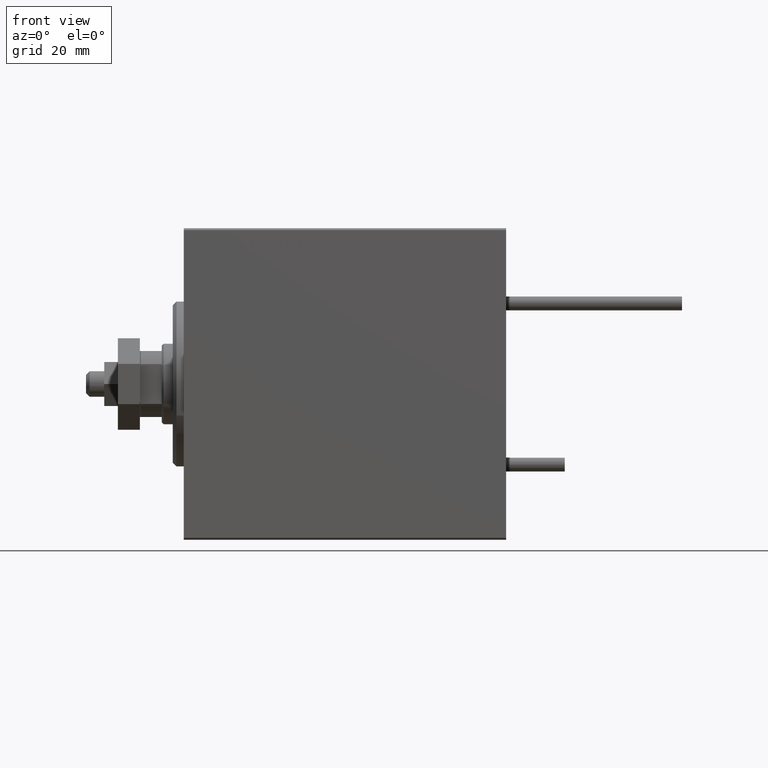
[diagram: clean part render]
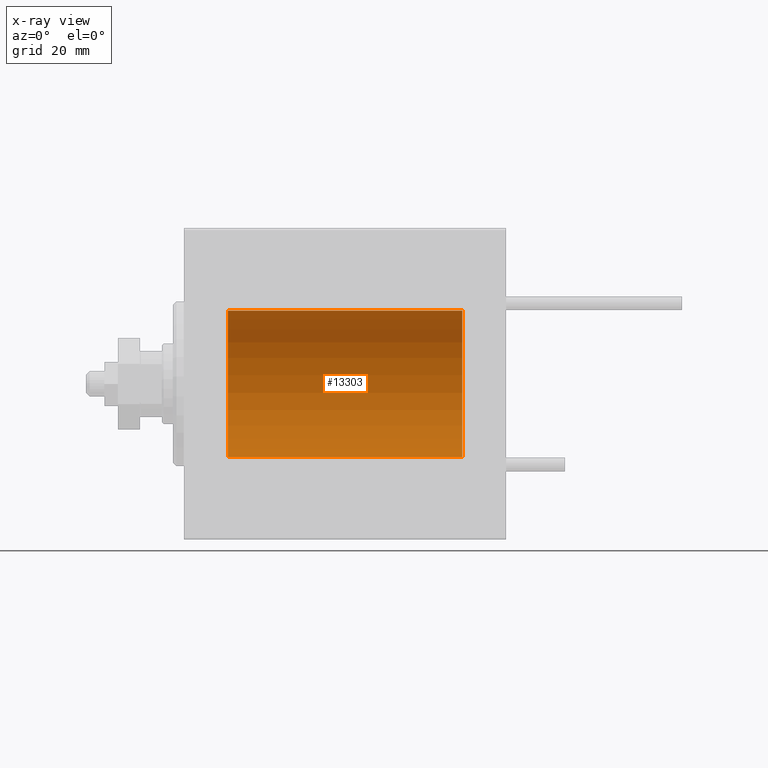
[diagram: x-ray — body ghosted, one internal face saturated and labeled with its STEP entity id]
A machine part, front view, then the same camera in x-ray: the body is ghosted and one INTERNAL B-rep face — a face not visible from any outside direction — is saturated and labeled: STEP entity #13303.
In plain terms, the highlighted cylindrical surface (partial cylindrical patch) has radius 20 mm, axis along (-1, -0, -0).
Its self-contained STEP definition (entity closure, byte-faithful):
#2117 = VECTOR ( 'NONE', #40702, 1000.000000000000000 ) ;
#3223 = CARTESIAN_POINT ( 'NONE',  ( 76.00000000000000000, 0.000000000000000000, 0.000000000000000000 ) ) ;
#3233 = LINE ( 'NONE', #25783, #2117 ) ;
#3499 = CYLINDRICAL_SURFACE ( 'NONE', #43440, 20.00000000000000000 ) ;
#3665 = DIRECTION ( 'NONE',  ( -1.000000000000000000, -0.000000000000000000, -0.000000000000000000 ) ) ;
#6250 = CARTESIAN_POINT ( 'NONE',  ( 11.99999999999999645, 0.000000000000000000, 0.000000000000000000 ) ) ;
#6258 = DIRECTION ( 'NONE',  ( 0.000000000000000000, 0.000000000000000000, 1.000000000000000000 ) ) ;
#7087 = ORIENTED_EDGE ( 'NONE', *, *, #37939, .F. ) ;
#7285 = VERTEX_POINT ( 'NONE', #10547 ) ;
#7305 = FACE_OUTER_BOUND ( 'NONE', #48223, .T. ) ;
#8377 = ORIENTED_EDGE ( 'NONE', *, *, #33532, .F. ) ;
#10068 = ORIENTED_EDGE ( 'NONE', *, *, #31655, .T. ) ;
#10290 = AXIS2_PLACEMENT_3D ( 'NONE', #3223, #41963, #6258 ) ;
#10547 = CARTESIAN_POINT ( 'NONE',  ( 11.99999999999999645, 0.000000000000000000, 20.00000000000000000 ) ) ;
#12584 = DIRECTION ( 'NONE',  ( 0.000000000000000000, 0.000000000000000000, 1.000000000000000000 ) ) ;
#13303 = ADVANCED_FACE ( 'NONE', ( #7305 ), #3499, .F. ) ;
#15149 = DIRECTION ( 'NONE',  ( -1.000000000000000000, -0.000000000000000000, -0.000000000000000000 ) ) ;
#15313 = CARTESIAN_POINT ( 'NONE',  ( 76.00000000000000000, 2.449293598294706513E-15, -20.00000000000000000 ) ) ;
#18016 = ORIENTED_EDGE ( 'NONE', *, *, #42840, .T. ) ;
#19997 = CIRCLE ( 'NONE', #48319, 20.00000000000000000 ) ;
#23307 = CARTESIAN_POINT ( 'NONE',  ( 11.99999999999999645, 2.449293598294706513E-15, -20.00000000000000000 ) ) ;
#24978 = VECTOR ( 'NONE', #3665, 1000.000000000000000 ) ;
#25783 = CARTESIAN_POINT ( 'NONE',  ( 76.00000000000000000, 0.000000000000000000, 20.00000000000000000 ) ) ;
#27208 = CARTESIAN_POINT ( 'NONE',  ( 76.00000000000000000, 2.449293598294706513E-15, -20.00000000000000000 ) ) ;
#30516 = LINE ( 'NONE', #15313, #24978 ) ;
#31655 = EDGE_CURVE ( 'NONE', #48244, #7285, #3233, .T. ) ;
#33532 = EDGE_CURVE ( 'NONE', #48244, #34804, #45841, .T. ) ;
#34804 = VERTEX_POINT ( 'NONE', #27208 ) ;
#37939 = EDGE_CURVE ( 'NONE', #34804, #39989, #30516, .T. ) ;
#39989 = VERTEX_POINT ( 'NONE', #23307 ) ;
#40702 = DIRECTION ( 'NONE',  ( -1.000000000000000000, -0.000000000000000000, -0.000000000000000000 ) ) ;
#41192 = DIRECTION ( 'NONE',  ( 0.000000000000000000, 0.000000000000000000, 1.000000000000000000 ) ) ;
#41963 = DIRECTION ( 'NONE',  ( -1.000000000000000000, 0.000000000000000000, 0.000000000000000000 ) ) ;
#42840 = EDGE_CURVE ( 'NONE', #7285, #39989, #19997, .T. ) ;
#43400 = CARTESIAN_POINT ( 'NONE',  ( 76.00000000000000000, 0.000000000000000000, 20.00000000000000000 ) ) ;
#43440 = AXIS2_PLACEMENT_3D ( 'NONE', #49838, #15149, #12584 ) ;
#45729 = DIRECTION ( 'NONE',  ( -1.000000000000000000, 0.000000000000000000, 0.000000000000000000 ) ) ;
#45841 = CIRCLE ( 'NONE', #10290, 20.00000000000000000 ) ;
#48223 = EDGE_LOOP ( 'NONE', ( #7087, #8377, #10068, #18016 ) ) ;
#48244 = VERTEX_POINT ( 'NONE', #43400 ) ;
#48319 = AXIS2_PLACEMENT_3D ( 'NONE', #6250, #45729, #41192 ) ;
#49838 = CARTESIAN_POINT ( 'NONE',  ( 76.00000000000000000, 0.000000000000000000, 0.000000000000000000 ) ) ;